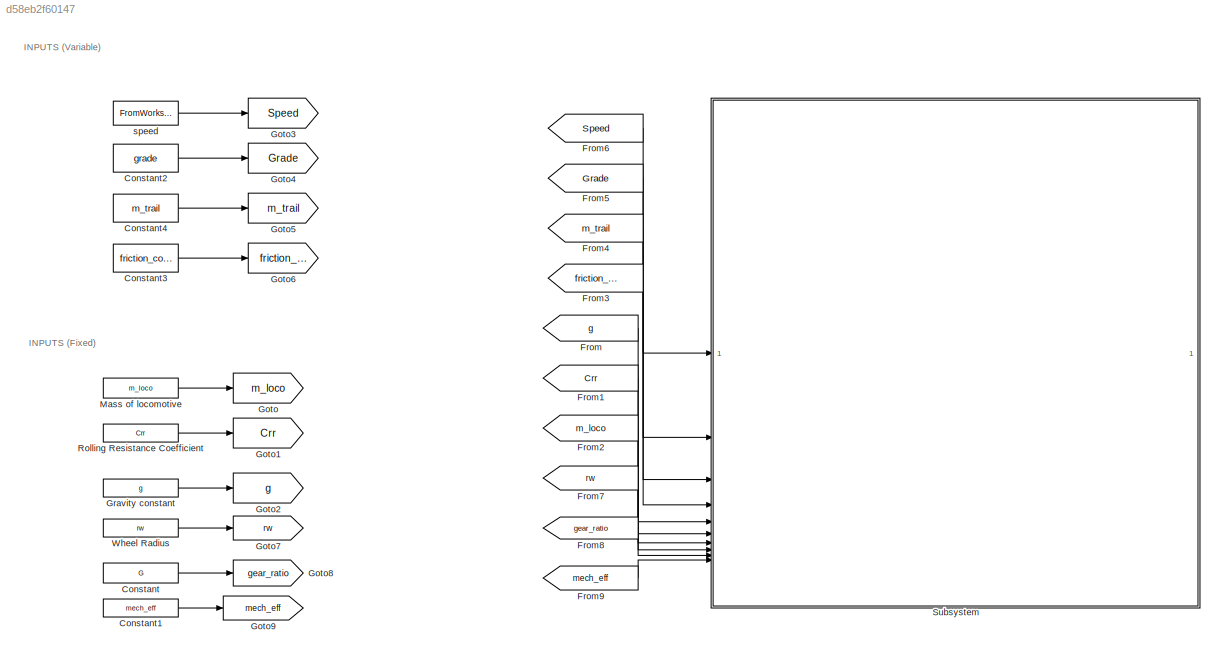
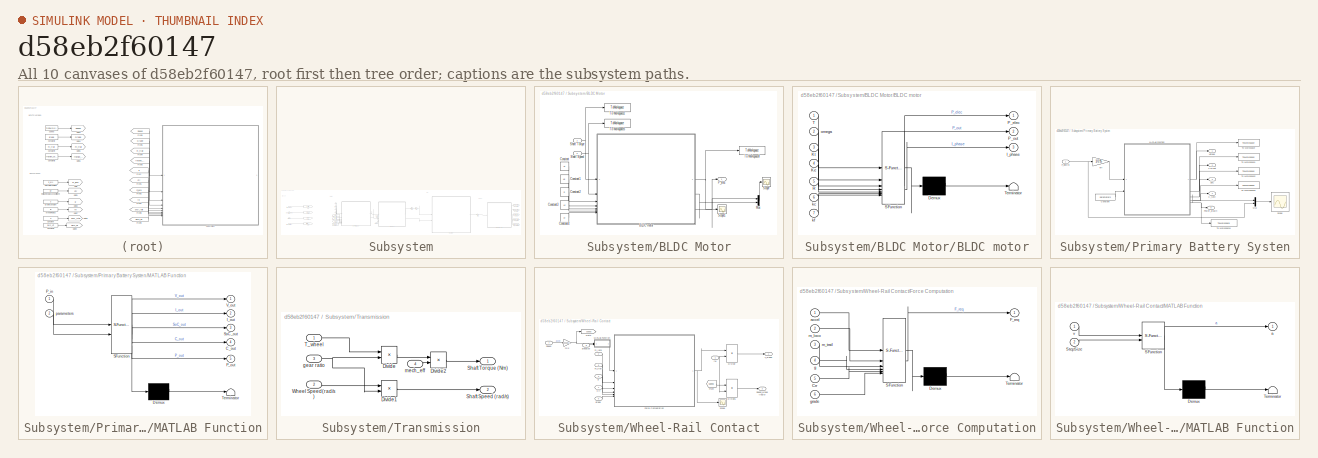
[diagram: thumbnail index - all 10 canvases of the model, root first then tree order]
MODEL slx_d58eb2f60147
KIND model
CONFIG AbsTol = auto
CONFIG EnableMultiTasking = off
CONFIG FixedStep = StepSize
CONFIG MaxStep = auto
CONFIG MinStep = auto
CONFIG RelTol = 1e-3
CONFIG SampleTimeConstraint = Unconstrained
CONFIG SolverName = ode4
CONFIG StartTime = 0.0
CONFIG StopTime = StopTime
BLOCK [Constant] Constant
  Value = G
BLOCK [Constant] Constant1
  Value = mech_eff
BLOCK [Constant] Constant2
  Value = grade
BLOCK [Constant] Constant3
  Value = friction_coeff
BLOCK [Constant] Constant4
  Value = m_trail
BLOCK [From] From
  GotoTag = g
BLOCK [From] From1
  GotoTag = Crr
BLOCK [From] From2
  GotoTag = m_loco
BLOCK [From] From3
  GotoTag = friction_coeff
BLOCK [From] From4
  GotoTag = m_trail
BLOCK [From] From5
  GotoTag = Grade
BLOCK [From] From6
  GotoTag = Speed
BLOCK [From] From7
  GotoTag = rw
BLOCK [From] From8
  GotoTag = gear_ratio
BLOCK [From] From9
  GotoTag = mech_eff
BLOCK [Goto] Goto
  GotoTag = m_loco
BLOCK [Goto] Goto1
  GotoTag = Crr
BLOCK [Goto] Goto2
  GotoTag = g
BLOCK [Goto] Goto3
  GotoTag = Speed
BLOCK [Goto] Goto4
  GotoTag = Grade
BLOCK [Goto] Goto5
  GotoTag = m_trail
BLOCK [Goto] Goto6
  GotoTag = friction_coeff
BLOCK [Goto] Goto7
  GotoTag = rw
BLOCK [Goto] Goto8
  GotoTag = gear_ratio
BLOCK [Goto] Goto9
  GotoTag = mech_eff
BLOCK [Constant] Gravity constant
  Value = g
BLOCK [Constant] Mass of locomotive
  Value = m_loco
BLOCK [Constant] Rolling Resistance Coefficient
  Value = Crr
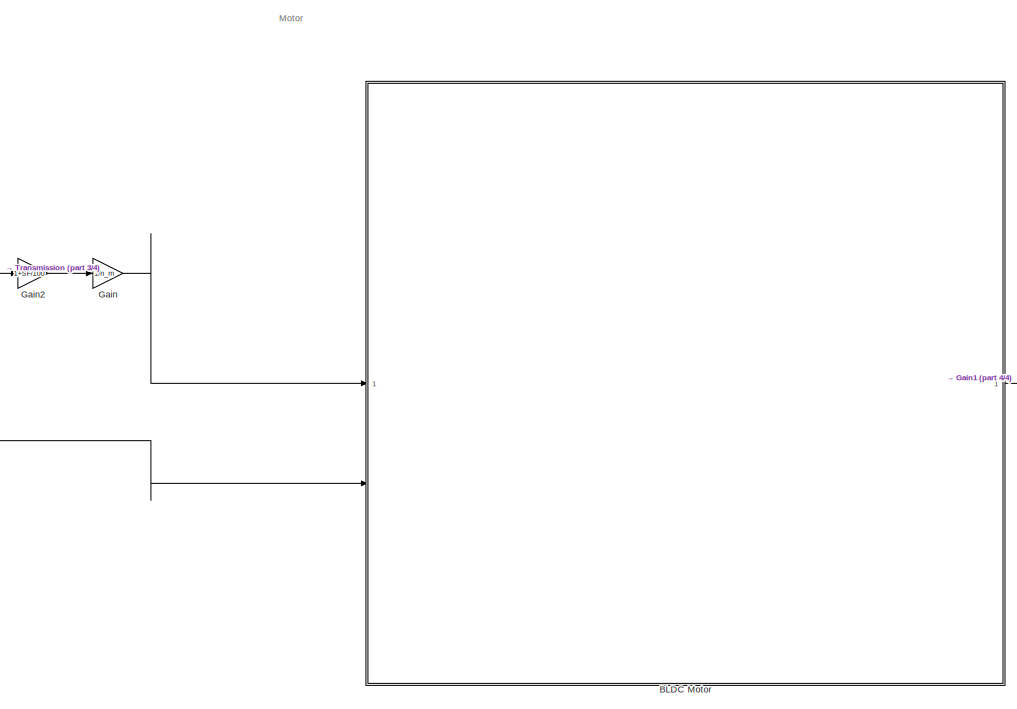
[diagram: Subsystem - part 1/4, center side, full height]
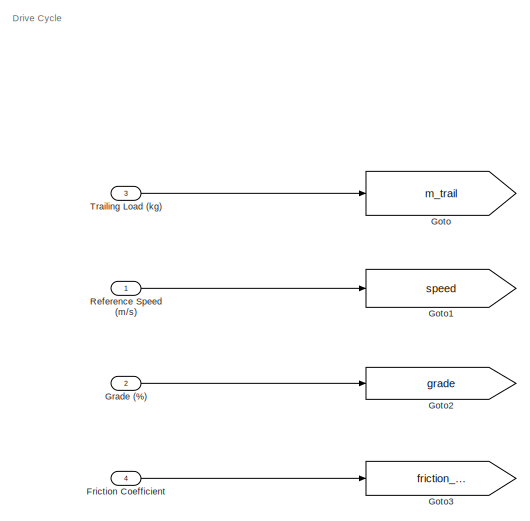
[diagram: Subsystem - part 2/4, middle left region]
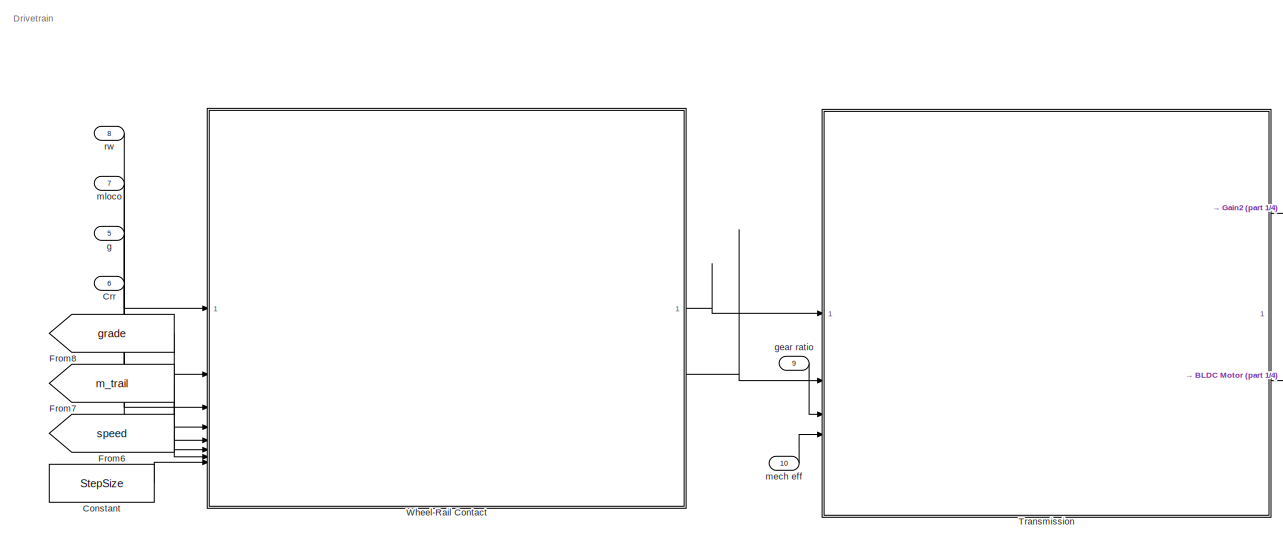
[diagram: Subsystem - part 3/4, central region]
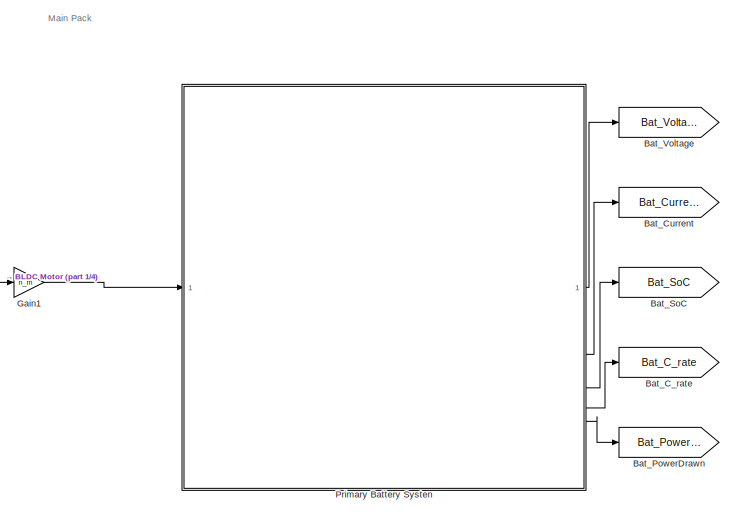
[diagram: Subsystem - part 4/4, middle right region]
BLOCK [SubSystem] Subsystem
BLOCK [SubSystem] Subsystem/BLDC Motor
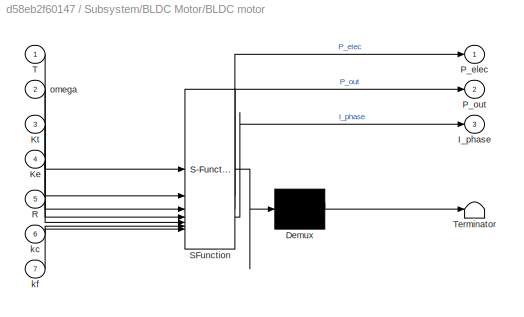
BLOCK [SubSystem] Subsystem/BLDC Motor/BLDC motor
  ErrorFcn = Stateflow.Translate.translate
  PermitHierarchicalResolution = ExplicitOnly
  SFBlockType = MATLAB Function
  TreatAsAtomicUnit = on
BLOCK [Demux] Subsystem/BLDC Motor/BLDC motor/ Demux 
  Outputs = 1
BLOCK [S-Function] Subsystem/BLDC Motor/BLDC motor/ SFunction 
  EnableBusSupport = off
  FunctionName = sf_sfun
  PortCounts = [7 4]
  SFcnIsStateOwnerBlock = off
  SFunctionDeploymentMode = off
  Tag = Stateflow S-Function 8
BLOCK [Terminator] Subsystem/BLDC Motor/BLDC motor/ Terminator 
BLOCK [Outport] Subsystem/BLDC Motor/BLDC motor/I_phase
  Port = 3
BLOCK [Inport] Subsystem/BLDC Motor/BLDC motor/Ke
  Port = 4
BLOCK [Inport] Subsystem/BLDC Motor/BLDC motor/Kt
  Port = 3
BLOCK [Outport] Subsystem/BLDC Motor/BLDC motor/P_elec
BLOCK [Outport] Subsystem/BLDC Motor/BLDC motor/P_out
  Port = 2
BLOCK [Inport] Subsystem/BLDC Motor/BLDC motor/R
  Port = 5
BLOCK [Inport] Subsystem/BLDC Motor/BLDC motor/T
BLOCK [Inport] Subsystem/BLDC Motor/BLDC motor/kc
  Port = 6
BLOCK [Inport] Subsystem/BLDC Motor/BLDC motor/kf
  Port = 7
BLOCK [Inport] Subsystem/BLDC Motor/BLDC motor/omega
  Port = 2
BLOCK [Constant] Subsystem/BLDC Motor/Constant
  Value = Kt
BLOCK [Constant] Subsystem/BLDC Motor/Constant1
  Value = Ke
BLOCK [Constant] Subsystem/BLDC Motor/Constant2
  Value = R
BLOCK [Constant] Subsystem/BLDC Motor/Constant3
  Value = kc
BLOCK [Constant] Subsystem/BLDC Motor/Constant4
  Value = kf
BLOCK [Mux] Subsystem/BLDC Motor/Mux
  DisplayOption = bar
  Inputs = 2
BLOCK [Outport] Subsystem/BLDC Motor/P_elec
BLOCK [Scope] Subsystem/BLDC Motor/Scope
  ActiveDisplayYMaximum = 11488.893381770382
  ActiveDisplayYMinimum = -6255.3768862692459
  DataLoggingVariableName = ScopeData7
  Floating = off
  GraphicalSettings = {"AxesScalingProperties":{"AlignXAxis":"Center","AlignYAxis":"Center","AutoScaleXAxisLimits":false,"AxesScaling":"Manual","AxesScalingNumUpdates":10,"ExpandOnly":true,"ScaleAxesLimitsAtStop":false,"XAxisDataRange":100,"YAxisDataRange":80},"DisplayProperties":{"ColorOrder":["auto","auto","auto","auto","auto","auto","auto","auto","auto","auto","auto","auto","auto","auto","auto","auto","auto","auto",...<+2157ch>
  MultipleDisplayCache = [{"MaxYLimMag":8113.41157809951,"MaxYLimReal":11488.893381770382,"MinYLimMag":0,"MinYLimReal":-6255.3768862692459,"PlotAsMagnitudePhase":false,"ShowGrid":true,"ShowLegend":true,"Title":"%<SignalLabel>","YLabel":""}]
  NumInputPorts = 1
  ScopeFrameLocation = window
  ShowLegend = on
  WasSavedAsWebScope = on
  WindowPosition = [1.000000,49.000000,1536.000000,793.000000,]
BLOCK [Scope] Subsystem/BLDC Motor/Scope1
  ActiveDisplayYMaximum = 11488.893381770382
  ActiveDisplayYMinimum = -6255.3768862692459
  Floating = off
  GraphicalSettings = {"AxesScalingProperties":{"AlignXAxis":"Center","AlignYAxis":"Center","AutoScaleXAxisLimits":false,"AxesScaling":"Manual","AxesScalingNumUpdates":10,"ExpandOnly":true,"ScaleAxesLimitsAtStop":false,"XAxisDataRange":100,"YAxisDataRange":80},"DisplayProperties":{"ColorOrder":["auto","auto","auto","auto","auto","auto","auto","auto","auto","auto","auto","auto","auto","auto","auto","auto","auto","auto",...<+2157ch>
  MultipleDisplayCache = [{"MaxYLimMag":8113.41157809951,"MaxYLimReal":11488.893381770382,"MinYLimMag":0,"MinYLimReal":-6255.3768862692459,"PlotAsMagnitudePhase":false,"ShowGrid":true,"ShowLegend":true,"Title":"%<SignalLabel>","YLabel":""}]
  NumInputPorts = 1
  ScopeFrameLocation = window
  ShowLegend = on
  WasSavedAsWebScope = on
  WindowPosition = [1.000000,49.000000,1536.000000,793.000000,]
BLOCK [Inport] Subsystem/BLDC Motor/Shaft Speed
  Port = 2
BLOCK [Inport] Subsystem/BLDC Motor/Shaft Torque
BLOCK [ToWorkspace] Subsystem/BLDC Motor/To Workspace2
  FixptAsFi = on
  MaxDataPoints = inf
  SampleTime = -1
  SaveFormat = Structure With Time
  VariableName = T_mech
BLOCK [ToWorkspace] Subsystem/BLDC Motor/To Workspace3
  FixptAsFi = on
  MaxDataPoints = inf
  SampleTime = -1
  SaveFormat = Structure With Time
  VariableName = omega_el
BLOCK [ToWorkspace] Subsystem/BLDC Motor/To Workspace4
  FixptAsFi = on
  MaxDataPoints = inf
  SampleTime = -1
  SaveFormat = Structure With Time
  VariableName = P_elec
BLOCK [Goto] Subsystem/Bat_C_rate
  Commented = on
  GotoTag = Bat_C_rate
BLOCK [Goto] Subsystem/Bat_Current
  Commented = on
  GotoTag = Bat_Current
BLOCK [Goto] Subsystem/Bat_PowerDrawn
  Commented = on
  GotoTag = Bat_PowerDrawn
BLOCK [Goto] Subsystem/Bat_SoC
  Commented = on
  GotoTag = Bat_SoC
BLOCK [Goto] Subsystem/Bat_Voltage
  Commented = on
  GotoTag = Bat_Voltage
BLOCK [Constant] Subsystem/Constant
  Value = StepSize
BLOCK [Inport] Subsystem/Crr
  Port = 6
BLOCK [Inport] Subsystem/Friction Coefficient
  Port = 4
BLOCK [From] Subsystem/From6
  GotoTag = speed
BLOCK [From] Subsystem/From7
  GotoTag = m_trail
BLOCK [From] Subsystem/From8
  GotoTag = grade
BLOCK [Gain] Subsystem/Gain
  Gain = 1/n_m
BLOCK [Gain] Subsystem/Gain1
  Gain = n_m
BLOCK [Gain] Subsystem/Gain2
  Gain = 1+SF/100
BLOCK [Goto] Subsystem/Goto
  GotoTag = m_trail
BLOCK [Goto] Subsystem/Goto1
  GotoTag = speed
BLOCK [Goto] Subsystem/Goto2
  GotoTag = grade
BLOCK [Goto] Subsystem/Goto3
  Commented = on
  GotoTag = friction_coeff
BLOCK [Inport] Subsystem/Grade (%)
  Port = 2
BLOCK [SubSystem] Subsystem/Primary Battery Systen
BLOCK [Outport] Subsystem/Primary Battery Systen/C_rate
  Port = 4
BLOCK [Constant] Subsystem/Primary Battery Systen/Constant
  OutDataTypeStr = Bus: parametersBus
  Value = parameters
BLOCK [Outport] Subsystem/Primary Battery Systen/Current
  Port = 2
BLOCK [SubSystem] Subsystem/Primary Battery Systen/MATLAB Function
  ErrorFcn = Stateflow.Translate.translate
  PermitHierarchicalResolution = ExplicitOnly
  SFBlockType = MATLAB Function
  TreatAsAtomicUnit = on
BLOCK [Demux] Subsystem/Primary Battery Systen/MATLAB Function/ Demux 
  Outputs = 1
BLOCK [S-Function] Subsystem/Primary Battery Systen/MATLAB Function/ SFunction 
  EnableBusSupport = off
  FunctionName = sf_sfun
  PortCounts = [2 6]
  SFcnIsStateOwnerBlock = off
  SFunctionDeploymentMode = off
  Tag = Stateflow S-Function 2
BLOCK [Terminator] Subsystem/Primary Battery Systen/MATLAB Function/ Terminator 
BLOCK [Outport] Subsystem/Primary Battery Systen/MATLAB Function/C_out
  Port = 4
BLOCK [Outport] Subsystem/Primary Battery Systen/MATLAB Function/I_out
  Port = 2
BLOCK [Inport] Subsystem/Primary Battery Systen/MATLAB Function/P_in
BLOCK [Outport] Subsystem/Primary Battery Systen/MATLAB Function/P_out
  Port = 5
BLOCK [Outport] Subsystem/Primary Battery Systen/MATLAB Function/SoC_out
  Port = 3
BLOCK [Outport] Subsystem/Primary Battery Systen/MATLAB Function/V_out
BLOCK [Inport] Subsystem/Primary Battery Systen/MATLAB Function/parameters
  Port = 2
BLOCK [Mux] Subsystem/Primary Battery Systen/Mux
  DisplayOption = bar
  Inputs = 2
BLOCK [Inport] Subsystem/Primary Battery Systen/P_electric
BLOCK [Outport] Subsystem/Primary Battery Systen/Power_drawn
  Port = 5
BLOCK [Scope] Subsystem/Primary Battery Systen/Scope
  ActiveDisplayYMaximum = 10259.532215638592
  ActiveDisplayYMinimum = -655.81491941325248
  DataLoggingVariableName = ScopeData6
  Floating = off
  GraphicalSettings = {"Style":{"BackgroundColor":[0.12941176470588237,0.12941176470588237,0.12941176470588237],"AxesColor":[0.07058823529411765,0.07058823529411765,0.07058823529411765],"LabelsColor":[0.8509803921568627,0.8509803921568627,0.8509803921568627],"PreserveColors":false,"Visible":[false,false],"LineStyle":["-","-"],"LineWidth":[1.5,1.5],"BarWidth":[0.9,0.9],"LineColor":["auto","auto"],"LineFaceAlpha":[1,1],"...<+2148ch>
  MultipleDisplayCache = [{"MaxYLimMag":10259.532215638592,"MaxYLimReal":10259.532215638592,"MinYLimMag":0,"MinYLimReal":-655.81491941325248,"PlotAsMagnitudePhase":false,"ShowGrid":true,"ShowLegend":true,"Title":"%<SignalLabel>","YLabel":""}]
  NumInputPorts = 1
  ScopeFrameLocation = window
  ShowLegend = on
  WasSavedAsWebScope = on
  WindowPosition = [1.000000,49.000000,1536.000000,793.000000,]
BLOCK [Outport] Subsystem/Primary Battery Systen/SoC
  Port = 3
BLOCK [ToWorkspace] Subsystem/Primary Battery Systen/To Workspace
  FixptAsFi = on
  MaxDataPoints = inf
  SampleTime = -1
  SaveFormat = Structure With Time
  VariableName = voltage
BLOCK [ToWorkspace] Subsystem/Primary Battery Systen/To Workspace1
  FixptAsFi = on
  MaxDataPoints = inf
  SampleTime = -1
  SaveFormat = Structure With Time
  VariableName = current
BLOCK [ToWorkspace] Subsystem/Primary Battery Systen/To Workspace2
  FixptAsFi = on
  MaxDataPoints = inf
  SampleTime = -1
  SaveFormat = Structure With Time
  VariableName = soc
BLOCK [ToWorkspace] Subsystem/Primary Battery Systen/To Workspace3
  FixptAsFi = on
  MaxDataPoints = inf
  SampleTime = -1
  SaveFormat = Structure With Time
  VariableName = c_rate
BLOCK [ToWorkspace] Subsystem/Primary Battery Systen/To Workspace4
  FixptAsFi = on
  MaxDataPoints = inf
  SampleTime = -1
  SaveFormat = Structure With Time
  VariableName = P_drawn_out
BLOCK [Outport] Subsystem/Primary Battery Systen/Voltage
BLOCK [Gain] Subsystem/Primary Battery Systen/eff
  Gain = 1/0.95
BLOCK [Inport] Subsystem/Reference Speed (m//s)
BLOCK [Inport] Subsystem/Trailing Load (kg)
  Port = 3
BLOCK [SubSystem] Subsystem/Transmission
BLOCK [Product] Subsystem/Transmission/Divide
  Inputs = */
BLOCK [Product] Subsystem/Transmission/Divide1
  Inputs = **
BLOCK [Product] Subsystem/Transmission/Divide2
  Inputs = */
BLOCK [Outport] Subsystem/Transmission/Shaft Speed (rad//s)
  Port = 2
BLOCK [Outport] Subsystem/Transmission/Shaft Torque (Nm)
BLOCK [Inport] Subsystem/Transmission/T_wheel
BLOCK [Inport] Subsystem/Transmission/Wheel Speed(rad//s)
  Port = 2
BLOCK [Inport] Subsystem/Transmission/gear ratio
  Port = 3
BLOCK [Inport] Subsystem/Transmission/mech_eff
  Port = 4
BLOCK [SubSystem] Subsystem/Wheel-Rail Contact
BLOCK [Inport] Subsystem/Wheel-Rail Contact/Crr
  Port = 4
BLOCK [Product] Subsystem/Wheel-Rail Contact/Divide
  Inputs = **
BLOCK [Product] Subsystem/Wheel-Rail Contact/Divide1
  Inputs = */
  NameLocation = top
BLOCK [SubSystem] Subsystem/Wheel-Rail Contact/Force Computation
  ErrorFcn = Stateflow.Translate.translate
  PermitHierarchicalResolution = ExplicitOnly
  SFBlockType = MATLAB Function
  TreatAsAtomicUnit = on
BLOCK [Demux] Subsystem/Wheel-Rail Contact/Force Computation/ Demux 
  Outputs = 1
BLOCK [S-Function] Subsystem/Wheel-Rail Contact/Force Computation/ SFunction 
  EnableBusSupport = off
  FunctionName = sf_sfun
  PortCounts = [6 2]
  SFcnIsStateOwnerBlock = off
  SFunctionDeploymentMode = off
  Tag = Stateflow S-Function 6
BLOCK [Terminator] Subsystem/Wheel-Rail Contact/Force Computation/ Terminator 
BLOCK [Inport] Subsystem/Wheel-Rail Contact/Force Computation/Crr
  Port = 5
BLOCK [Outport] Subsystem/Wheel-Rail Contact/Force Computation/F_req
BLOCK [Inport] Subsystem/Wheel-Rail Contact/Force Computation/accel
BLOCK [Inport] Subsystem/Wheel-Rail Contact/Force Computation/g
  Port = 4
BLOCK [Inport] Subsystem/Wheel-Rail Contact/Force Computation/grade
  Port = 6
BLOCK [Inport] Subsystem/Wheel-Rail Contact/Force Computation/m_loco
  Port = 2
BLOCK [Inport] Subsystem/Wheel-Rail Contact/Force Computation/m_trail
  Port = 3
BLOCK [From] Subsystem/Wheel-Rail Contact/From
  GotoTag = speed
BLOCK [Goto] Subsystem/Wheel-Rail Contact/Goto
  GotoTag = speed
BLOCK [SubSystem] Subsystem/Wheel-Rail Contact/MATLAB Function
  ErrorFcn = Stateflow.Translate.translate
  PermitHierarchicalResolution = ExplicitOnly
  SFBlockType = MATLAB Function
  TreatAsAtomicUnit = on
BLOCK [Demux] Subsystem/Wheel-Rail Contact/MATLAB Function/ Demux 
  Outputs = 1
BLOCK [S-Function] Subsystem/Wheel-Rail Contact/MATLAB Function/ SFunction 
  EnableBusSupport = off
  FunctionName = sf_sfun
  PortCounts = [2 2]
  SFcnIsStateOwnerBlock = off
  SFunctionDeploymentMode = off
  Tag = Stateflow S-Function 3
BLOCK [Terminator] Subsystem/Wheel-Rail Contact/MATLAB Function/ Terminator 
BLOCK [Inport] Subsystem/Wheel-Rail Contact/MATLAB Function/StepSize
  Port = 2
BLOCK [Outport] Subsystem/Wheel-Rail Contact/MATLAB Function/a
BLOCK [Inport] Subsystem/Wheel-Rail Contact/MATLAB Function/v
BLOCK [Scope] Subsystem/Wheel-Rail Contact/Scope
  ActiveDisplayYMaximum = 1
  ActiveDisplayYMinimum = -1
  DataLoggingVariableName = ScopeData1
  Floating = off
  GraphicalSettings = {"Style":{"BackgroundColor":[0.12941176470588237,0.12941176470588237,0.12941176470588237],"AxesColor":[0.07058823529411765,0.07058823529411765,0.07058823529411765],"LabelsColor":[0.8509803921568627,0.8509803921568627,0.8509803921568627],"PreserveColors":false,"Visible":[true],"LineStyle":["-"],"LineWidth":[1.5],"BarWidth":[0.9],"LineColor":["auto"],"LineFaceAlpha":[1],"LineEdgeAlpha":[1],"Marker":...<+1905ch>
  MultipleDisplayCache = [{"MaxYLimMag":1,"MaxYLimReal":1,"MinYLimMag":0,"MinYLimReal":-1,"PlotAsMagnitudePhase":false,"ShowGrid":true,"ShowLegend":false,"Title":"%<SignalLabel>","YLabel":""}]
  NumInputPorts = 1
  ScopeFrameLocation = window
  WasSavedAsWebScope = on
  WindowPosition = [488.000000,222.000000,560.000000,420.000000,]
BLOCK [Inport] Subsystem/Wheel-Rail Contact/Speed
  Port = 7
BLOCK [Outport] Subsystem/Wheel-Rail Contact/Speed_wheel (rad//s)
  Port = 2
BLOCK [Inport] Subsystem/Wheel-Rail Contact/StepSize
  Port = 8
BLOCK [Outport] Subsystem/Wheel-Rail Contact/T_wheel
BLOCK [Inport] Subsystem/Wheel-Rail Contact/g
  Port = 3
BLOCK [Inport] Subsystem/Wheel-Rail Contact/grade
  Port = 5
BLOCK [Gain] Subsystem/Wheel-Rail Contact/m//s
  Gain = 1000/3600
BLOCK [Inport] Subsystem/Wheel-Rail Contact/m_loco
  Port = 2
BLOCK [Inport] Subsystem/Wheel-Rail Contact/m_trail
  Port = 6
BLOCK [Inport] Subsystem/Wheel-Rail Contact/rw
BLOCK [Inport] Subsystem/g
  Port = 5
BLOCK [Inport] Subsystem/gear ratio
  Port = 9
BLOCK [Inport] Subsystem/mech eff
  Port = 10
BLOCK [Inport] Subsystem/mloco
  Port = 7
BLOCK [Inport] Subsystem/rw
  Port = 8
BLOCK [Constant] Wheel Radius
  Value = rw
BLOCK [FromWorkspace] speed
  OutDataTypeStr = double
  SampleTime = -1
  VariableName = ts_speed
ANNOTATION (root): INPUTS (Fixed)
ANNOTATION (root): INPUTS (Variable)
ANNOTATION Subsystem: Drive Cycle
ANNOTATION Subsystem: Drivetrain
ANNOTATION Subsystem: Main Pack
ANNOTATION Subsystem: Motor
LINE Constant1:1 -> Goto9:1
LINE Constant2:1 -> Goto4:1
LINE Constant3:1 -> Goto6:1
LINE Constant4:1 -> Goto5:1
LINE Constant:1 -> Goto8:1
LINE From1:1 -> Subsystem:6
LINE From2:1 -> Subsystem:7
LINE From3:1 -> Subsystem:4
LINE From4:1 -> Subsystem:3
LINE From5:1 -> Subsystem:2
LINE From6:1 -> Subsystem:1
LINE From7:1 -> Subsystem:8
LINE From8:1 -> Subsystem:9
LINE From9:1 -> Subsystem:10
LINE From:1 -> Subsystem:5
LINE Gravity constant:1 -> Goto2:1
LINE Mass of locomotive:1 -> Goto:1
LINE Rolling Resistance Coefficient:1 -> Goto1:1
NET Subsystem/BLDC Motor/BLDC motor:1 -> Subsystem/BLDC Motor/Mux:1, Subsystem/BLDC Motor/P_elec:1, Subsystem/BLDC Motor/To Workspace4:1
LINE Subsystem/BLDC Motor/BLDC motor:2 -> Subsystem/BLDC Motor/Mux:2
LINE Subsystem/BLDC Motor/BLDC motor:3 -> Subsystem/BLDC Motor/Scope1:1
LINE Subsystem/BLDC Motor/Constant1:1 -> Subsystem/BLDC Motor/BLDC motor:4
LINE Subsystem/BLDC Motor/Constant2:1 -> Subsystem/BLDC Motor/BLDC motor:5
LINE Subsystem/BLDC Motor/Constant3:1 -> Subsystem/BLDC Motor/BLDC motor:6
LINE Subsystem/BLDC Motor/Constant4:1 -> Subsystem/BLDC Motor/BLDC motor:7
LINE Subsystem/BLDC Motor/Constant:1 -> Subsystem/BLDC Motor/BLDC motor:3
LINE Subsystem/BLDC Motor/Mux:1 -> Subsystem/BLDC Motor/Scope:1
NET Subsystem/BLDC Motor/Shaft Speed:1 -> Subsystem/BLDC Motor/BLDC motor:2, Subsystem/BLDC Motor/To Workspace3:1
NET Subsystem/BLDC Motor/Shaft Torque:1 -> Subsystem/BLDC Motor/BLDC motor:1, Subsystem/BLDC Motor/To Workspace2:1
LINE Subsystem/BLDC Motor:1 -> Subsystem/Gain1:1
LINE Subsystem/Constant:1 -> Subsystem/Wheel-Rail Contact:8
LINE Subsystem/Crr:1 -> Subsystem/Wheel-Rail Contact:4
LINE Subsystem/Friction Coefficient:1 -> Subsystem/Goto3:1
LINE Subsystem/From6:1 -> Subsystem/Wheel-Rail Contact:7
LINE Subsystem/From7:1 -> Subsystem/Wheel-Rail Contact:6
LINE Subsystem/From8:1 -> Subsystem/Wheel-Rail Contact:5
LINE Subsystem/Gain1:1 -> Subsystem/Primary Battery Systen:1
LINE Subsystem/Gain2:1 -> Subsystem/Gain:1
LINE Subsystem/Gain:1 -> Subsystem/BLDC Motor:1
LINE Subsystem/Grade (%):1 -> Subsystem/Goto2:1
LINE Subsystem/Primary Battery Systen/Constant:1 -> Subsystem/Primary Battery Systen/MATLAB Function:2
NET Subsystem/Primary Battery Systen/MATLAB Function:1 -> Subsystem/Primary Battery Systen/To Workspace:1, Subsystem/Primary Battery Systen/Voltage:1
NET Subsystem/Primary Battery Systen/MATLAB Function:2 -> Subsystem/Primary Battery Systen/Current:1, Subsystem/Primary Battery Systen/To Workspace1:1
NET Subsystem/Primary Battery Systen/MATLAB Function:3 -> Subsystem/Primary Battery Systen/SoC:1, Subsystem/Primary Battery Systen/To Workspace2:1
NET Subsystem/Primary Battery Systen/MATLAB Function:4 -> Subsystem/Primary Battery Systen/C_rate:1, Subsystem/Primary Battery Systen/To Workspace3:1
NET Subsystem/Primary Battery Systen/MATLAB Function:5 -> Subsystem/Primary Battery Systen/Mux:1, Subsystem/Primary Battery Systen/Power_drawn:1, Subsystem/Primary Battery Systen/To Workspace4:1
LINE Subsystem/Primary Battery Systen/Mux:1 -> Subsystem/Primary Battery Systen/Scope:1
NET Subsystem/Primary Battery Systen/P_electric:1 -> Subsystem/Primary Battery Systen/Mux:2, Subsystem/Primary Battery Systen/eff:1
LINE Subsystem/Primary Battery Systen/eff:1 -> Subsystem/Primary Battery Systen/MATLAB Function:1
LINE Subsystem/Primary Battery Systen:1 -> Subsystem/Bat_Voltage:1
LINE Subsystem/Primary Battery Systen:2 -> Subsystem/Bat_Current:1
LINE Subsystem/Primary Battery Systen:3 -> Subsystem/Bat_SoC:1
LINE Subsystem/Primary Battery Systen:4 -> Subsystem/Bat_C_rate:1
LINE Subsystem/Primary Battery Systen:5 -> Subsystem/Bat_PowerDrawn:1
LINE Subsystem/Reference Speed (m//s):1 -> Subsystem/Goto1:1
LINE Subsystem/Trailing Load (kg):1 -> Subsystem/Goto:1
LINE Subsystem/Transmission/Divide1:1 -> Subsystem/Transmission/Shaft Speed (rad//s):1
LINE Subsystem/Transmission/Divide2:1 -> Subsystem/Transmission/Shaft Torque (Nm):1
LINE Subsystem/Transmission/Divide:1 -> Subsystem/Transmission/Divide2:1
LINE Subsystem/Transmission/T_wheel:1 -> Subsystem/Transmission/Divide:1
LINE Subsystem/Transmission/Wheel Speed(rad//s):1 -> Subsystem/Transmission/Divide1:1
NET Subsystem/Transmission/gear ratio:1 -> Subsystem/Transmission/Divide1:2, Subsystem/Transmission/Divide:2
LINE Subsystem/Transmission/mech_eff:1 -> Subsystem/Transmission/Divide2:2
LINE Subsystem/Transmission:1 -> Subsystem/Gain2:1
LINE Subsystem/Transmission:2 -> Subsystem/BLDC Motor:2
LINE Subsystem/Wheel-Rail Contact/Crr:1 -> Subsystem/Wheel-Rail Contact/Force Computation:5
LINE Subsystem/Wheel-Rail Contact/Divide1:1 -> Subsystem/Wheel-Rail Contact/Speed_wheel (rad//s):1
LINE Subsystem/Wheel-Rail Contact/Divide:1 -> Subsystem/Wheel-Rail Contact/T_wheel:1
NET Subsystem/Wheel-Rail Contact/Force Computation:1 -> Subsystem/Wheel-Rail Contact/Divide:1, Subsystem/Wheel-Rail Contact/Scope:1
LINE Subsystem/Wheel-Rail Contact/From:1 -> Subsystem/Wheel-Rail Contact/Divide1:1
LINE Subsystem/Wheel-Rail Contact/MATLAB Function:1 -> Subsystem/Wheel-Rail Contact/Force Computation:1
LINE Subsystem/Wheel-Rail Contact/Speed:1 -> Subsystem/Wheel-Rail Contact/m//s:1
LINE Subsystem/Wheel-Rail Contact/StepSize:1 -> Subsystem/Wheel-Rail Contact/MATLAB Function:2
LINE Subsystem/Wheel-Rail Contact/g:1 -> Subsystem/Wheel-Rail Contact/Force Computation:4
LINE Subsystem/Wheel-Rail Contact/grade:1 -> Subsystem/Wheel-Rail Contact/Force Computation:6
NET Subsystem/Wheel-Rail Contact/m//s:1 -> Subsystem/Wheel-Rail Contact/Goto:1, Subsystem/Wheel-Rail Contact/MATLAB Function:1
LINE Subsystem/Wheel-Rail Contact/m_loco:1 -> Subsystem/Wheel-Rail Contact/Force Computation:2
LINE Subsystem/Wheel-Rail Contact/m_trail:1 -> Subsystem/Wheel-Rail Contact/Force Computation:3
NET Subsystem/Wheel-Rail Contact/rw:1 -> Subsystem/Wheel-Rail Contact/Divide1:2, Subsystem/Wheel-Rail Contact/Divide:2
LINE Subsystem/Wheel-Rail Contact:1 -> Subsystem/Transmission:1
LINE Subsystem/Wheel-Rail Contact:2 -> Subsystem/Transmission:2
LINE Subsystem/g:1 -> Subsystem/Wheel-Rail Contact:3
LINE Subsystem/gear ratio:1 -> Subsystem/Transmission:3
LINE Subsystem/mech eff:1 -> Subsystem/Transmission:4
LINE Subsystem/mloco:1 -> Subsystem/Wheel-Rail Contact:2
LINE Subsystem/rw:1 -> Subsystem/Wheel-Rail Contact:1
LINE Wheel Radius:1 -> Goto7:1
LINE speed:1 -> Goto3:1
note: NET lines group one-source signal fan-out (src -> all destinations, sorted); 1:1 wires keep LINE
CHART Subsystem/Primary Battery Systen/MATLAB Function states=1 transitions=1
  STATE_LABEL 'eML_blk_kernel()'
  STATE_LABEL 'SCRIPT:\nfunction [V_out, I_out, SoC_out, C_out, P_out] = batteryModelFcn(P_in, parameters)\n%#codegen\npersistent SoC V_RC\ndt = 0.001;\n\n% Initialize persistent states\nif isempty(SoC)\n    SoC = 1;           % Start fully charged\nend\nif isempty(V_RC)\n    V_RC = 0;          % RC voltage\nend\n\n% Unpack parameters\nusable_capacity_Ah = parameters.usable_capacity_Ah;\nQ_total            = usable_capacity_Ah ...<+1159ch>'
CHART Subsystem/Wheel-Rail Contact/MATLAB Function states=1 transitions=1
  STATE_LABEL 'eML_blk_kernel()'
  STATE_LABEL 'SCRIPT:\nfunction a = diff_accel(v,StepSize)\n  % v is the current speed [m/s]\n  persistent v_last\n  if isempty(v_last)\n    v_last = v;\n  end\n  a = (v - v_last) / StepSize;   % StepSize must be in base workspace\n  v_last = v;\nend\n\n'
CHART Subsystem/Wheel-Rail Contact/Force Computation states=1 transitions=1
  STATE_LABEL 'eML_blk_kernel()'
  STATE_LABEL 'SCRIPT:\nfunction F_req = Force_Computation(accel, m_loco, m_trail, g, Crr, grade)\n\na=accel;\nm_total=m_trail+m_loco;\n\nF_grade = m_total * g * grade;  % grade\nF_rr    = m_total * g * Crr;% rolling\nF_a=m_total*a; % Force due to a imposed acceleration\nF_req   = F_grade + F_rr+F_a;\nend'
CHART Subsystem/BLDC Motor/BLDC motor states=1 transitions=1
  STATE_LABEL 'eML_blk_kernel()'
  STATE_LABEL 'SCRIPT:\nfunction [P_elec,P_out, I_phase]  = calc_elec_power(T, omega, Kt,Ke,R,kc,kf)\n  %This function calculates the eletrical power needed for a given\n  %mechanical power and a given motor\n\n  % INPUTS:\n  %T-Shaft Torque (N.m)\n  %omega-Shaft speed (rads-1)\n  % motor.Kt  – torque constant [Nm/A]\n  % motor.Ke  – EMF constant [V·s/rad]\n  % motor.R   – phase resistance [Ohm]\n  % motor.kc  – core loss ...<+515ch>'
CHART  states=0 transitions=0
CHART  states=0 transitions=0
CHART  states=0 transitions=0
CHART  states=0 transitions=0
